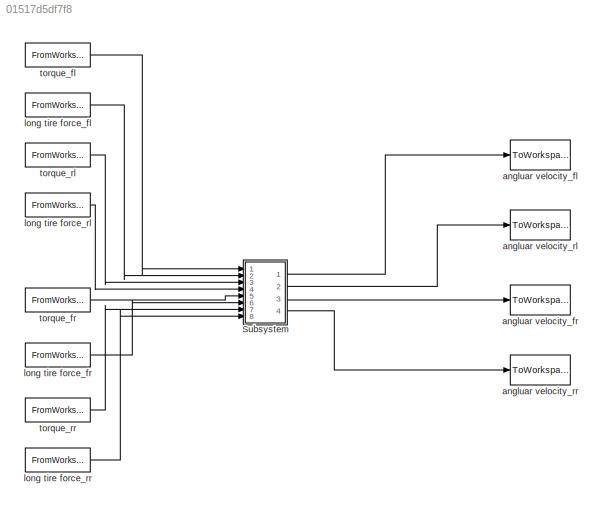
MODEL slx_01517d5df7f8
KIND model
CONFIG AbsTol = auto
CONFIG FixedStep = auto
CONFIG MaxStep = auto
CONFIG MinStep = auto
CONFIG RelTol = 1e-3
CONFIG SampleTimeConstraint = Unconstrained
CONFIG Solver = ode45
CONFIG SolverMode = Auto
CONFIG SolverName = ode45
CONFIG StartTime = 0.0
CONFIG StopTime = 10.0
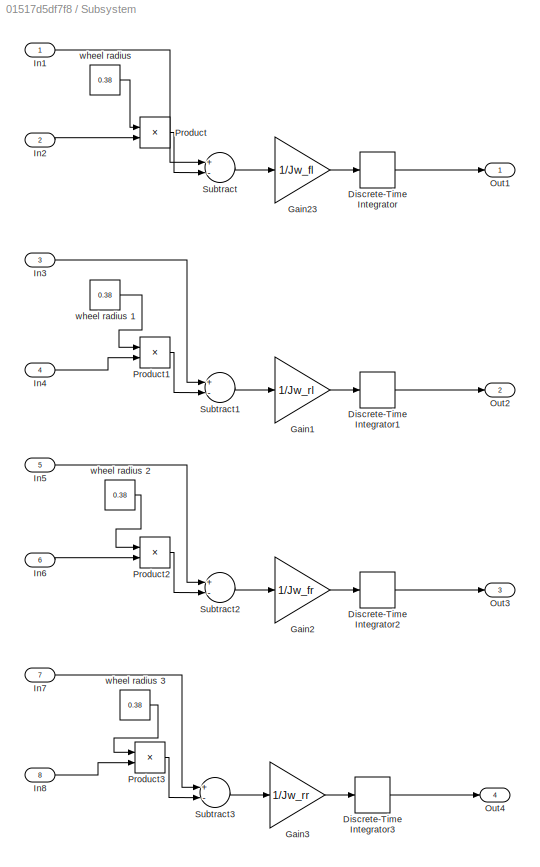
BLOCK [SubSystem] Subsystem
  Ports = [8, 4]
  RequestExecContextInheritance = off
BLOCK [DiscreteIntegrator] Subsystem/Discrete-Time Integrator
  InitialConditionSetting = State (most efficient)
  Ports = [1, 1]
BLOCK [DiscreteIntegrator] Subsystem/Discrete-Time Integrator1
  InitialConditionSetting = State (most efficient)
  Ports = [1, 1]
BLOCK [DiscreteIntegrator] Subsystem/Discrete-Time Integrator2
  InitialConditionSetting = State (most efficient)
  Ports = [1, 1]
BLOCK [DiscreteIntegrator] Subsystem/Discrete-Time Integrator3
  InitialConditionSetting = State (most efficient)
  Ports = [1, 1]
BLOCK [Gain] Subsystem/Gain1
  Gain = 1/Jw_rl
  OutDataTypeStr = Inherit: Inherit via internal rule
  ParamDataTypeStr = Inherit: Inherit via internal rule
  SaturateOnIntegerOverflow = off
BLOCK [Gain] Subsystem/Gain2
  Gain = 1/Jw_fr
  OutDataTypeStr = Inherit: Inherit via internal rule
  ParamDataTypeStr = Inherit: Inherit via internal rule
  SaturateOnIntegerOverflow = off
BLOCK [Gain] Subsystem/Gain23
  Gain = 1/Jw_fl
  OutDataTypeStr = Inherit: Inherit via internal rule
  ParamDataTypeStr = Inherit: Inherit via internal rule
  SaturateOnIntegerOverflow = off
BLOCK [Gain] Subsystem/Gain3
  Gain = 1/Jw_rr
  OutDataTypeStr = Inherit: Inherit via internal rule
  ParamDataTypeStr = Inherit: Inherit via internal rule
  SaturateOnIntegerOverflow = off
BLOCK [Inport] Subsystem/In1
  IconDisplay = Port number
BLOCK [Inport] Subsystem/In2
  IconDisplay = Port number
  Port = 2
BLOCK [Inport] Subsystem/In3
  IconDisplay = Port number
  Port = 3
BLOCK [Inport] Subsystem/In4
  IconDisplay = Port number
  Port = 4
BLOCK [Inport] Subsystem/In5
  IconDisplay = Port number
  Port = 5
BLOCK [Inport] Subsystem/In6
  IconDisplay = Port number
  Port = 6
BLOCK [Inport] Subsystem/In7
  IconDisplay = Port number
  Port = 7
BLOCK [Inport] Subsystem/In8
  IconDisplay = Port number
  Port = 8
BLOCK [Outport] Subsystem/Out1
  IconDisplay = Port number
BLOCK [Outport] Subsystem/Out2
  IconDisplay = Port number
  Port = 2
BLOCK [Outport] Subsystem/Out3
  IconDisplay = Port number
  Port = 3
BLOCK [Outport] Subsystem/Out4
  IconDisplay = Port number
  Port = 4
BLOCK [Product] Subsystem/Product
  InputSameDT = off
  OutDataTypeStr = Inherit: Inherit via internal rule
  Ports = [2, 1]
  RndMeth = Floor
  SaturateOnIntegerOverflow = off
BLOCK [Product] Subsystem/Product1
  InputSameDT = off
  OutDataTypeStr = Inherit: Inherit via internal rule
  Ports = [2, 1]
  RndMeth = Floor
  SaturateOnIntegerOverflow = off
BLOCK [Product] Subsystem/Product2
  InputSameDT = off
  OutDataTypeStr = Inherit: Inherit via internal rule
  Ports = [2, 1]
  RndMeth = Floor
  SaturateOnIntegerOverflow = off
BLOCK [Product] Subsystem/Product3
  InputSameDT = off
  OutDataTypeStr = Inherit: Inherit via internal rule
  Ports = [2, 1]
  RndMeth = Floor
  SaturateOnIntegerOverflow = off
BLOCK [Sum] Subsystem/Subtract
  InputSameDT = off
  Inputs = +-
  OutDataTypeStr = Inherit: Inherit via internal rule
  Ports = [2, 1]
  SaturateOnIntegerOverflow = off
BLOCK [Sum] Subsystem/Subtract1
  InputSameDT = off
  Inputs = +-
  OutDataTypeStr = Inherit: Inherit via internal rule
  Ports = [2, 1]
  SaturateOnIntegerOverflow = off
BLOCK [Sum] Subsystem/Subtract2
  InputSameDT = off
  Inputs = +-
  OutDataTypeStr = Inherit: Inherit via internal rule
  Ports = [2, 1]
  SaturateOnIntegerOverflow = off
BLOCK [Sum] Subsystem/Subtract3
  InputSameDT = off
  Inputs = +-
  OutDataTypeStr = Inherit: Inherit via internal rule
  Ports = [2, 1]
  SaturateOnIntegerOverflow = off
BLOCK [Constant] Subsystem/wheel radius 
  Value = 0.38
BLOCK [Constant] Subsystem/wheel radius 1
  Value = 0.38
BLOCK [Constant] Subsystem/wheel radius 2
  Value = 0.38
BLOCK [Constant] Subsystem/wheel radius 3
  Value = 0.38
BLOCK [ToWorkspace] angluar velocity_fl
  FixptAsFi = on
  MaxDataPoints = inf
  Ports = [1]
  SampleTime = -1
  Save2DSignal = 3-D array (concatenate along third dimension)
  SaveFormat = Timeseries
  VariableName = w_fl
BLOCK [ToWorkspace] angluar velocity_fr
  FixptAsFi = on
  MaxDataPoints = inf
  Ports = [1]
  SampleTime = -1
  Save2DSignal = 3-D array (concatenate along third dimension)
  SaveFormat = Timeseries
  VariableName = w_fr
BLOCK [ToWorkspace] angluar velocity_rl
  FixptAsFi = on
  MaxDataPoints = inf
  Ports = [1]
  SampleTime = -1
  Save2DSignal = 3-D array (concatenate along third dimension)
  SaveFormat = Timeseries
  VariableName = w_rl
BLOCK [ToWorkspace] angluar velocity_rr
  FixptAsFi = on
  MaxDataPoints = inf
  Ports = [1]
  SampleTime = -1
  Save2DSignal = 3-D array (concatenate along third dimension)
  SaveFormat = Timeseries
  VariableName = w_rr
BLOCK [FromWorkspace] long tire force_fl
  SampleTime = 0
  VariableName = F_xfl
  ZeroCross = on
BLOCK [FromWorkspace] long tire force_fr
  SampleTime = 0
  VariableName = F_xfr
  ZeroCross = on
BLOCK [FromWorkspace] long tire force_rl
  SampleTime = 0
  VariableName = F_xrl
  ZeroCross = on
BLOCK [FromWorkspace] long tire force_rr
  SampleTime = 0
  VariableName = F_xrr
  ZeroCross = on
BLOCK [FromWorkspace] torque_fl
  SampleTime = 0
  VariableName = T_fl
  ZeroCross = on
BLOCK [FromWorkspace] torque_fr
  SampleTime = 0
  VariableName = T_fr
  ZeroCross = on
BLOCK [FromWorkspace] torque_rl
  SampleTime = 0
  VariableName = T_rl
  ZeroCross = on
BLOCK [FromWorkspace] torque_rr
  SampleTime = 0
  VariableName = T_rr
  ZeroCross = on
LINE Subsystem/Discrete-Time Integrator1:1 -> Subsystem/Out2:1
LINE Subsystem/Discrete-Time Integrator2:1 -> Subsystem/Out3:1
LINE Subsystem/Discrete-Time Integrator3:1 -> Subsystem/Out4:1
LINE Subsystem/Discrete-Time Integrator:1 -> Subsystem/Out1:1
LINE Subsystem/Gain1:1 -> Subsystem/Discrete-Time Integrator1:1
LINE Subsystem/Gain23:1 -> Subsystem/Discrete-Time Integrator:1
LINE Subsystem/Gain2:1 -> Subsystem/Discrete-Time Integrator2:1
LINE Subsystem/Gain3:1 -> Subsystem/Discrete-Time Integrator3:1
LINE Subsystem/In1:1 -> Subsystem/Subtract:1
LINE Subsystem/In2:1 -> Subsystem/Product:2
LINE Subsystem/In3:1 -> Subsystem/Subtract1:1
LINE Subsystem/In4:1 -> Subsystem/Product1:2
LINE Subsystem/In5:1 -> Subsystem/Subtract2:1
LINE Subsystem/In6:1 -> Subsystem/Product2:2
LINE Subsystem/In7:1 -> Subsystem/Subtract3:1
LINE Subsystem/In8:1 -> Subsystem/Product3:2
LINE Subsystem/Product1:1 -> Subsystem/Subtract1:2
LINE Subsystem/Product2:1 -> Subsystem/Subtract2:2
LINE Subsystem/Product3:1 -> Subsystem/Subtract3:2
LINE Subsystem/Product:1 -> Subsystem/Subtract:2
LINE Subsystem/Subtract1:1 -> Subsystem/Gain1:1
LINE Subsystem/Subtract2:1 -> Subsystem/Gain2:1
LINE Subsystem/Subtract3:1 -> Subsystem/Gain3:1
LINE Subsystem/Subtract:1 -> Subsystem/Gain23:1
LINE Subsystem/wheel radius 1:1 -> Subsystem/Product1:1
LINE Subsystem/wheel radius 2:1 -> Subsystem/Product2:1
LINE Subsystem/wheel radius 3:1 -> Subsystem/Product3:1
LINE Subsystem/wheel radius :1 -> Subsystem/Product:1
LINE Subsystem:1 -> angluar velocity_fl:1
LINE Subsystem:2 -> angluar velocity_rl:1
LINE Subsystem:3 -> angluar velocity_fr:1
LINE Subsystem:4 -> angluar velocity_rr:1
LINE long tire force_fl:1 -> Subsystem:2
LINE long tire force_fr:1 -> Subsystem:6
LINE long tire force_rl:1 -> Subsystem:4
LINE long tire force_rr:1 -> Subsystem:8
LINE torque_fl:1 -> Subsystem:1
LINE torque_fr:1 -> Subsystem:5
LINE torque_rl:1 -> Subsystem:3
LINE torque_rr:1 -> Subsystem:7
